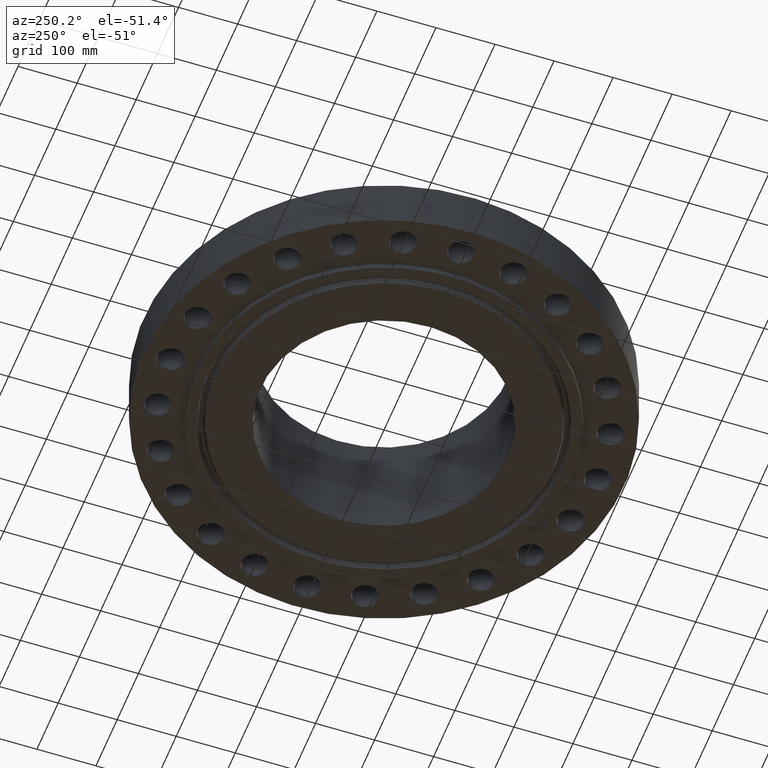
[diagram: clean part render]
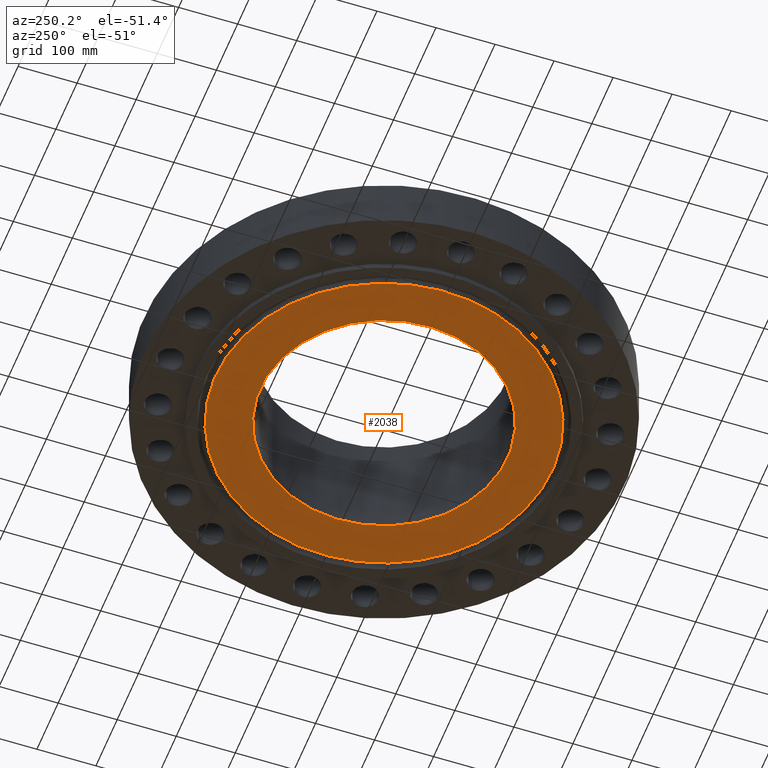
[diagram: same view with one face highlighted and labeled with its STEP entity id]
A machine part, auxiliary view. The second image highlights one B-rep face of the part: STEP entity #2038.
In plain terms, the highlighted planar face has unit normal (0, 0, -1).
Its self-contained STEP definition (entity closure, byte-faithful):
#427=AXIS2_PLACEMENT_3D('Circle Axis2P3D',#425,#426,$) ;
#446=AXIS2_PLACEMENT_3D('Circle Axis2P3D',#444,#445,$) ;
#1991=AXIS2_PLACEMENT_3D('Plane Axis2P3D',#1988,#1989,#1990) ;
#2018=AXIS2_PLACEMENT_3D('Circle Axis2P3D',#2016,#2017,$) ;
#2027=AXIS2_PLACEMENT_3D('Circle Axis2P3D',#2025,#2026,$) ;
#422=CARTESIAN_POINT('Vertex',(-3.9552606935,-7.24005613562,-0.375000000002)) ;
#425=CARTESIAN_POINT('Axis2P3D Location',(0.,0.,-0.375000000002)) ;
#429=CARTESIAN_POINT('Vertex',(3.9552606935,7.24005613562,-0.375000000002)) ;
#444=CARTESIAN_POINT('Axis2P3D Location',(0.,0.,-0.375000000002)) ;
#1988=CARTESIAN_POINT('Axis2P3D Location',(0.,8.25000000003,-0.375000000001)) ;
#2016=CARTESIAN_POINT('Axis2P3D Location',(0.,0.,-0.375000000001)) ;
#2020=CARTESIAN_POINT('Vertex',(-5.38610621347,9.8592012916,-0.375000000001)) ;
#2022=CARTESIAN_POINT('Vertex',(5.38610621347,-9.8592012916,-0.375000000001)) ;
#2025=CARTESIAN_POINT('Axis2P3D Location',(0.,1.1189649382E-015,-0.375000000001)) ;
#426=DIRECTION('Axis2P3D Direction',(0.,0.,-0.0393700787402)) ;
#445=DIRECTION('Axis2P3D Direction',(0.,0.,-0.0393700787402)) ;
#1989=DIRECTION('Axis2P3D Direction',(0.,0.,-0.0393700787402)) ;
#1990=DIRECTION('Axis2P3D XDirection',(0.0393700787402,0.,0.)) ;
#2017=DIRECTION('Axis2P3D Direction',(0.,0.,-0.0393700787402)) ;
#2026=DIRECTION('Axis2P3D Direction',(0.,0.,-0.0393700787402)) ;
#2031=ORIENTED_EDGE('',*,*,#2024,.T.) ;
#2032=ORIENTED_EDGE('',*,*,#2029,.T.) ;
#2035=ORIENTED_EDGE('',*,*,#448,.F.) ;
#2036=ORIENTED_EDGE('',*,*,#431,.F.) ;
#2037=FACE_BOUND('',#2034,.T.) ;
#2038=ADVANCED_FACE('PartBody',(#2033,#2037),#1992,.T.) ;
#428=CIRCLE('generated circle',#427,8.25000000003) ;
#447=CIRCLE('generated circle',#446,8.25000000003) ;
#2019=CIRCLE('generated circle',#2018,11.2345) ;
#2028=CIRCLE('generated circle',#2027,11.2345) ;
#431=EDGE_CURVE('',#423,#430,#428,.T.) ;
#448=EDGE_CURVE('',#430,#423,#447,.T.) ;
#2024=EDGE_CURVE('',#2021,#2023,#2019,.T.) ;
#2029=EDGE_CURVE('',#2023,#2021,#2028,.T.) ;
#2030=EDGE_LOOP('',(#2031,#2032)) ;
#2034=EDGE_LOOP('',(#2035,#2036)) ;
#2033=FACE_OUTER_BOUND('',#2030,.T.) ;
#1992=PLANE('',#1991) ;
#423=VERTEX_POINT('',#422) ;
#430=VERTEX_POINT('',#429) ;
#2021=VERTEX_POINT('',#2020) ;
#2023=VERTEX_POINT('',#2022) ;